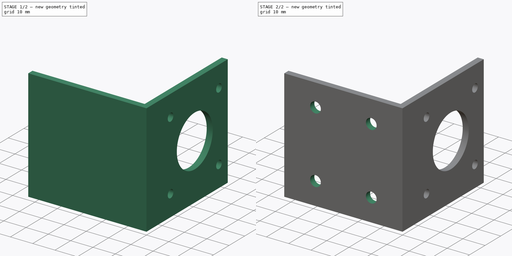
[diagram: build sequence overview — one tinted view per stage of 2, left to right]
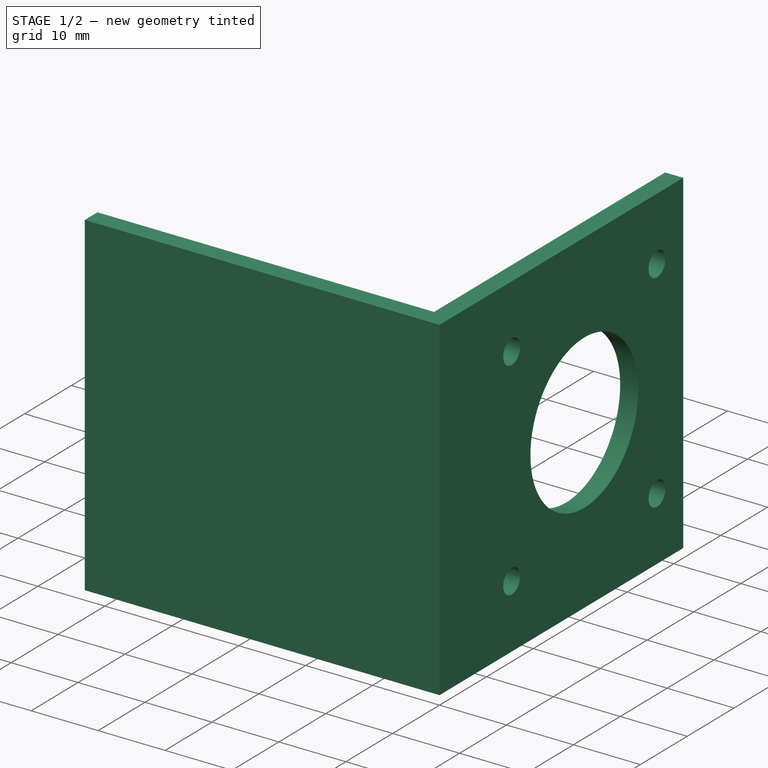
[diagram: stage 1 of 2 — iso view after this stage's code; geometry added in this stage tinted green]
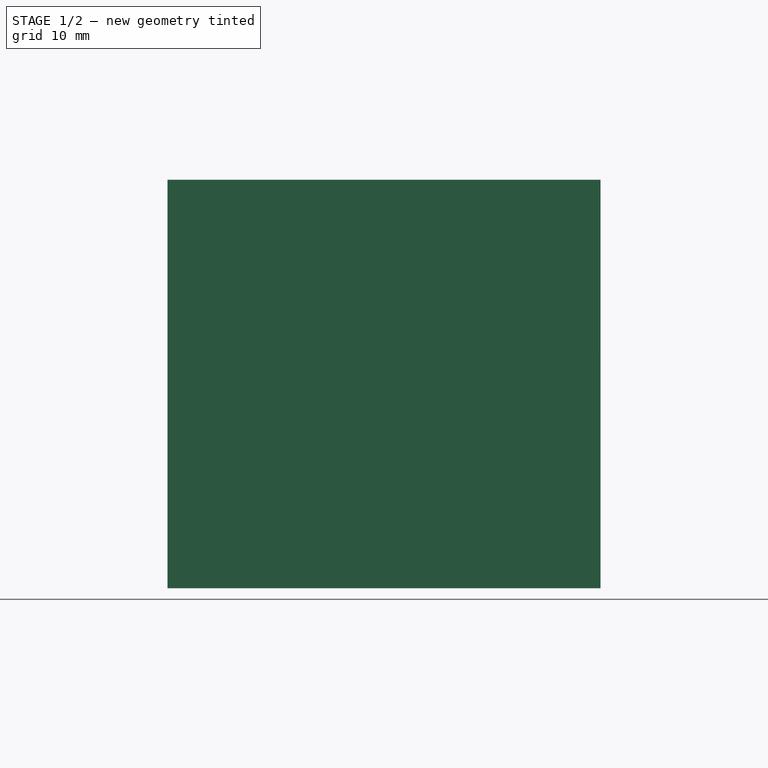
[diagram: stage 1 of 2 — front view after this stage's code; geometry added in this stage tinted green]
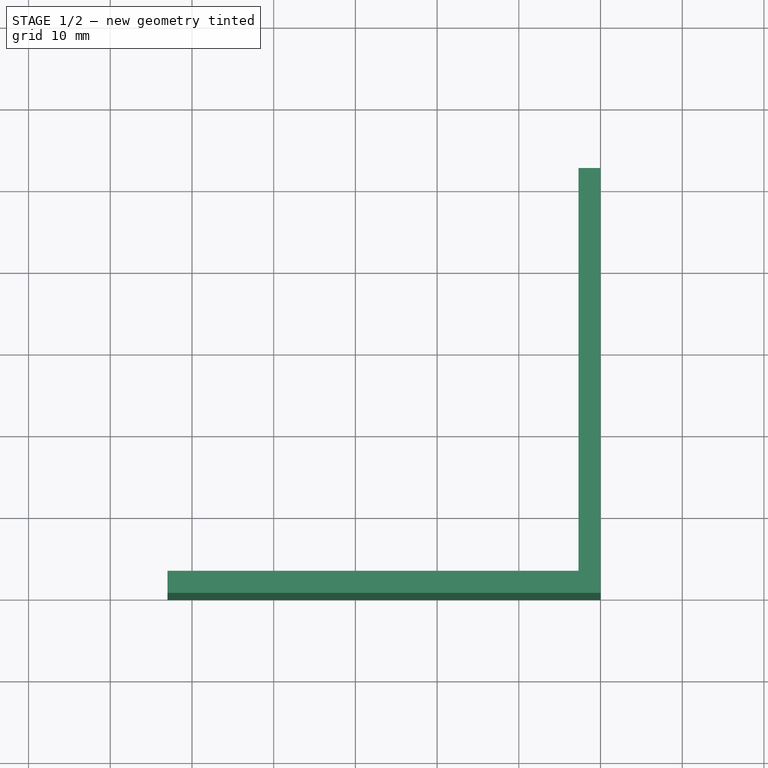
[diagram: stage 1 of 2 — top view after this stage's code; geometry added in this stage tinted green]
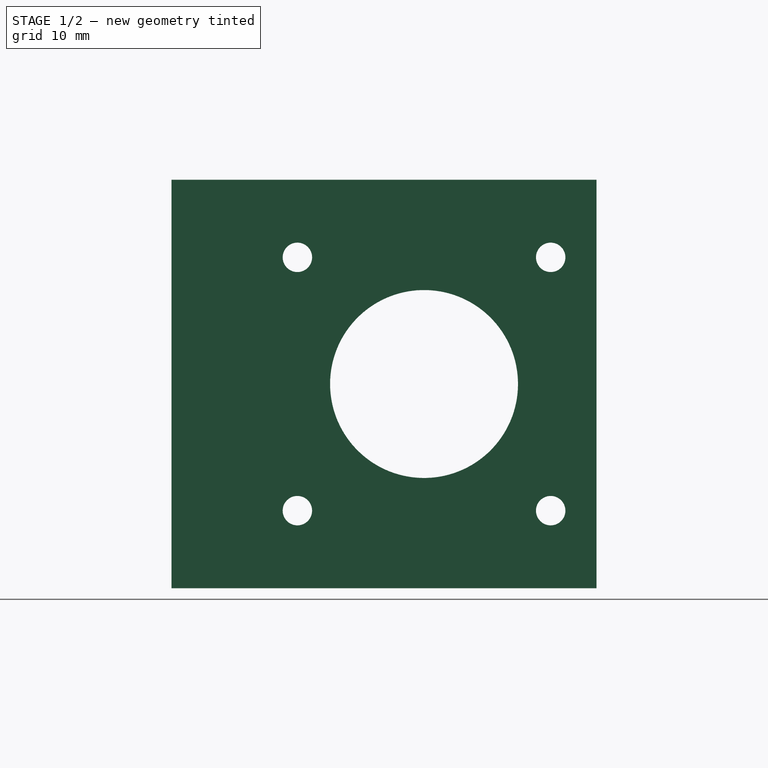
[diagram: stage 1 of 2 — right view after this stage's code; geometry added in this stage tinted green]
FCSTD DOCUMENT  (FreeCAD 0.16R6706 (Git))
Label: Suporte Lateral Nema 17
License: All rights reserved
LicenseURL: http://en.wikipedia.org/wiki/All_rights_reserved
objects: Sketcher::SketchObject×3, PartDesign::Pocket×2, PartDesign::Pad×1
note: 9 computed .brp shape members not serialized (recipe doc carries the construction recipe); baked Part::Feature solids carry a one-line shape summary decoded from their .brp

FEATURE [Sketcher::SketchObject] Sketch
  sketch-geometry (6):
    g0: LineSegment StartX=-2.7 StartY=2.7 StartZ=0 EndX=-53 EndY=2.7 EndZ=0
    g1: LineSegment StartX=-53 StartY=2.7 StartZ=0 EndX=-53 EndY=0 EndZ=0
    g2: LineSegment StartX=-53 StartY=0 StartZ=0 EndX=0 EndY=0 EndZ=0
    g3: LineSegment StartX=0 StartY=0 StartZ=0 EndX=0 EndY=52 EndZ=0
    g4: LineSegment StartX=0 StartY=52 StartZ=0 EndX=-2.7 EndY=52 EndZ=0
    g5: LineSegment StartX=-2.7 StartY=52 StartZ=0 EndX=-2.7 EndY=2.7 EndZ=0
  constraints (17):
    c: Coincident(g0,g1)
    c: Coincident(g1,g2)
    c: Coincident(g2,g3)
    c: Coincident(g3,g4)
    c: Coincident(g4,g5)
    c: Coincident(g0,g5)
    c: Horizontal(g0)
    c: Horizontal(g2)
    c: Horizontal(g4)
    c: Vertical(g1)
    c: Vertical(g5)
    c: Vertical(g3)
    c: DistanceY(g1,g1) = 2.7
    c: DistanceX(g4,g4) = 2.7
    c: DistanceX(g2,g2) = 53
    c: DistanceY(g3,g3) = 52
    c: Coincident(g2,g-1)
FEATURE [PartDesign::Pad] Pad
  Length = 50
  Length2 = 100
  Sketch = -> Sketch
  Type = 0
FEATURE [Sketcher::SketchObject] Sketch001
  ExternalGeometry = -> [Pad]
  Placement = pos=(-2.7,0,0) rot=(0.57735,-0.57735,-0.57735;2.0944rad)
  Support = -> Pad [Face6]
  sketch-geometry (10):
    g0: LineSegment [constr] StartX=-46.4 StartY=40.5 StartZ=0 EndX=-15.4 EndY=40.5 EndZ=0
    g1: LineSegment [constr] StartX=-15.4 StartY=40.5 StartZ=0 EndX=-15.4 EndY=9.5 EndZ=0
    g2: LineSegment [constr] StartX=-15.4 StartY=9.5 StartZ=0 EndX=-46.4 EndY=9.5 EndZ=0
    g3: LineSegment [constr] StartX=-46.4 StartY=9.5 StartZ=0 EndX=-46.4 EndY=40.5 EndZ=0
    g4: Circle CenterX=-30.9 CenterY=25 CenterZ=0 NormalX=0 NormalY=0 NormalZ=1 Radius=11.5
    g5: LineSegment [constr] StartX=-60.8024 StartY=25 StartZ=0 EndX=-33.6894 EndY=25 EndZ=0
    g6: Circle CenterX=-46.4 CenterY=40.5 CenterZ=0 NormalX=0 NormalY=0 NormalZ=1 Radius=1.8
    g7: Circle CenterX=-15.4 CenterY=40.5 CenterZ=0 NormalX=0 NormalY=0 NormalZ=1 Radius=1.8
    g8: Circle CenterX=-15.4 CenterY=9.5 CenterZ=0 NormalX=0 NormalY=0 NormalZ=1 Radius=1.8
    g9: Circle CenterX=-46.4 CenterY=9.5 CenterZ=0 NormalX=0 NormalY=0 NormalZ=1 Radius=1.8
  constraints (24):
    c: Coincident(g0,g1)
    c: Coincident(g1,g2)
    c: Coincident(g2,g3)
    c: Coincident(g3,g0)
    c: Horizontal(g0)
    c: Horizontal(g2)
    c: Vertical(g1)
    c: Vertical(g3)
    c: DistanceY(g3,g3) = 31
    c: Equal(g3,g0)
    c: Radius(g4) = 11.5
    c: Symmetric(g2,g0,g4)
    c: DistanceX(g-3,g2) = 5.6
    c: Horizontal(g5)
    c: Symmetric(g-4,g-3,g5)
    c: PointOnObject(g4,g5)
    c: Radius(g6) = 1.8
    c: Equal(g6,g7) = 1.8
    c: Equal(g6,g8) = 1.8
    c: Equal(g6,g9) = 1.8
    c: Coincident(g2,g9)
    c: Coincident(g1,g8)
    c: Coincident(g0,g7)
    c: Coincident(g6,g0)
FEATURE [PartDesign::Pocket] Pocket
  Length = 5
  Sketch = -> Sketch001
  Type = 2
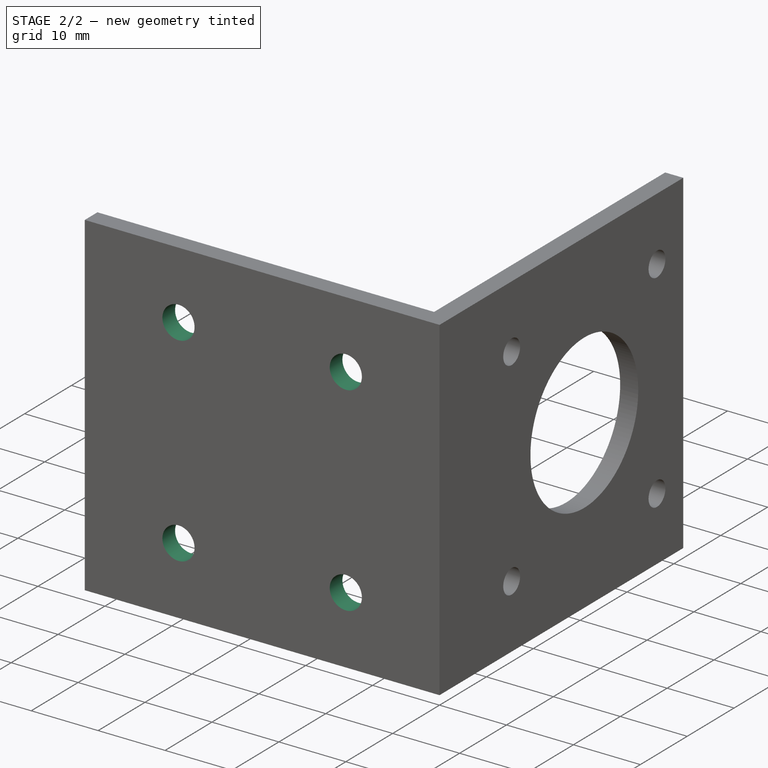
[diagram: stage 2 of 2 — iso view after this stage's code; geometry added in this stage tinted green]
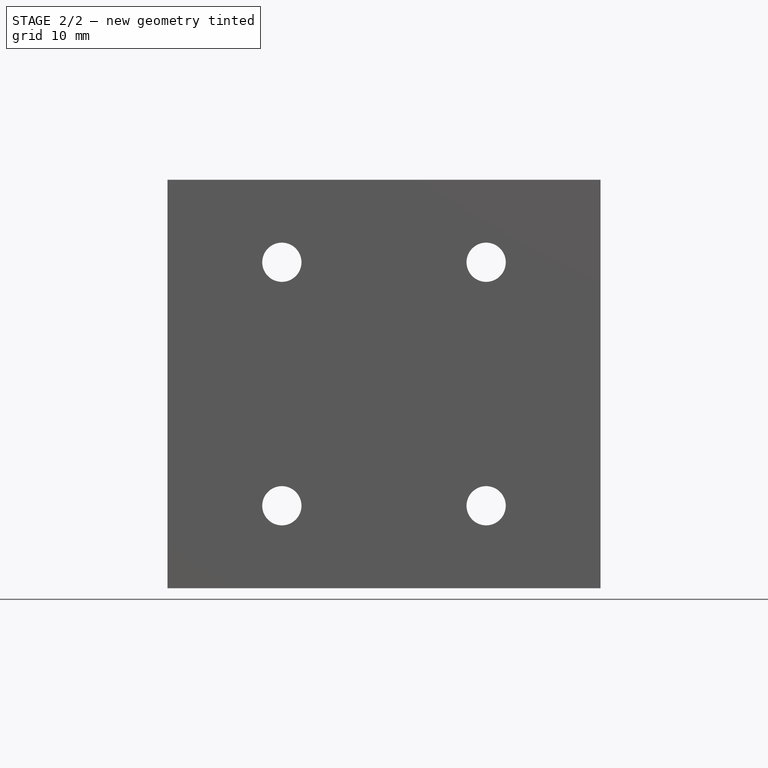
[diagram: stage 2 of 2 — front view after this stage's code; geometry added in this stage tinted green]
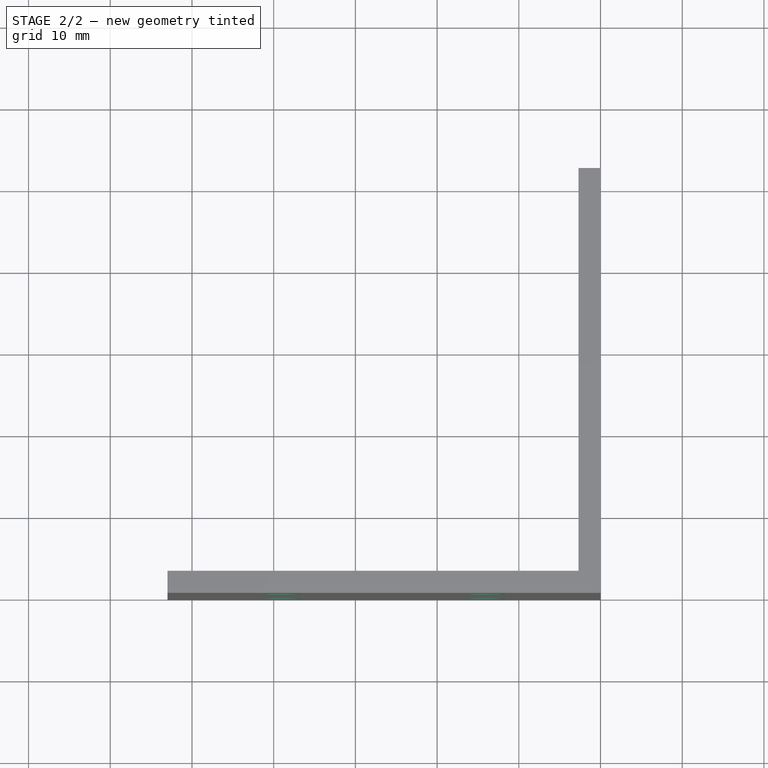
[diagram: stage 2 of 2 — top view after this stage's code; geometry added in this stage tinted green]
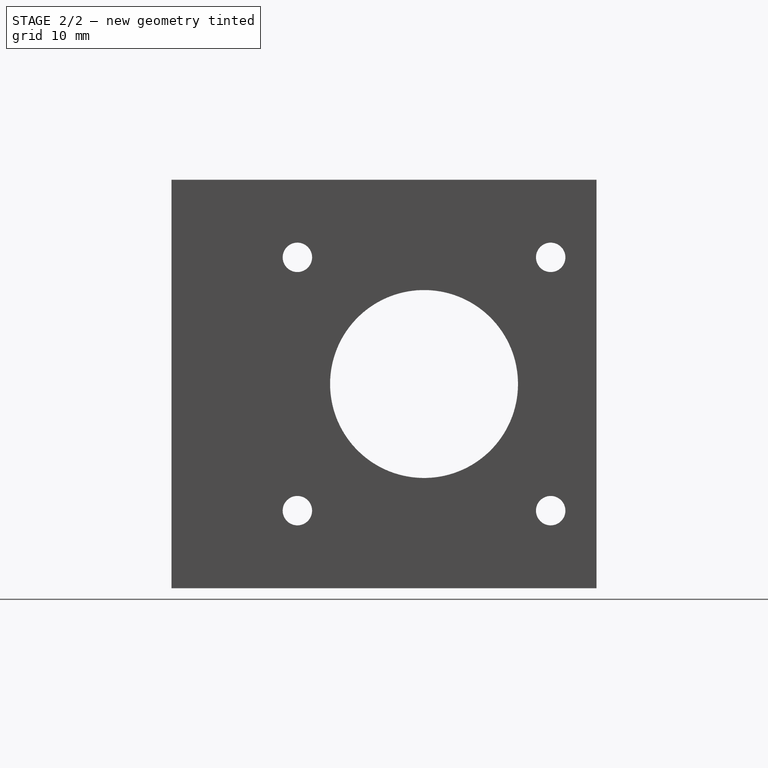
[diagram: stage 2 of 2 — right view after this stage's code; geometry added in this stage tinted green]
FEATURE [Sketcher::SketchObject] Sketch002
  ExternalGeometry = -> [Pocket]
  Placement = pos=(0,2.7,0) rot=(0,0.707107,0.707107;3.14159rad)
  Support = -> Pocket [Face1]
  sketch-geometry (8):
    g0: LineSegment [constr] StartX=14 StartY=39.9 StartZ=0 EndX=39 EndY=39.9 EndZ=0
    g1: LineSegment [constr] StartX=39 StartY=39.9 StartZ=0 EndX=39 EndY=10.1 EndZ=0
    g2: LineSegment [constr] StartX=39 StartY=10.1 StartZ=0 EndX=14 EndY=10.1 EndZ=0
    g3: LineSegment [constr] StartX=14 StartY=10.1 StartZ=0 EndX=14 EndY=39.9 EndZ=0
    g4: Circle CenterX=14 CenterY=39.9 CenterZ=0 NormalX=0 NormalY=0 NormalZ=1 Radius=2.4
    g5: Circle CenterX=39 CenterY=39.9 CenterZ=0 NormalX=0 NormalY=0 NormalZ=1 Radius=2.4
    g6: Circle CenterX=39 CenterY=10.1 CenterZ=0 NormalX=0 NormalY=0 NormalZ=1 Radius=2.4
    g7: Circle CenterX=14 CenterY=10.1 CenterZ=0 NormalX=0 NormalY=0 NormalZ=1 Radius=2.4
  constraints (20):
    c: Coincident(g0,g1)
    c: Coincident(g1,g2)
    c: Coincident(g2,g3)
    c: Coincident(g3,g0)
    c: Horizontal(g0)
    c: Horizontal(g2)
    c: Vertical(g1)
    c: Vertical(g3)
    c: DistanceY(g1,g1) = 29.8
    c: DistanceY(g0,g-3) = 10.1
    c: DistanceX(g0,g0) = 25
    c: DistanceX(g-3,g0) = 11.3
    c: Radius(g4) = 2.4
    c: Equal(g4,g5) = 2.4
    c: Equal(g4,g6) = 2.4
    c: Equal(g4,g7) = 2.4
    c: Coincident(g0,g4)
    c: Coincident(g0,g5)
    c: Coincident(g2,g7)
    c: Coincident(g1,g6)
FEATURE [PartDesign::Pocket] Pocket001
  Length = 5
  Sketch = -> Sketch002
  Type = 0
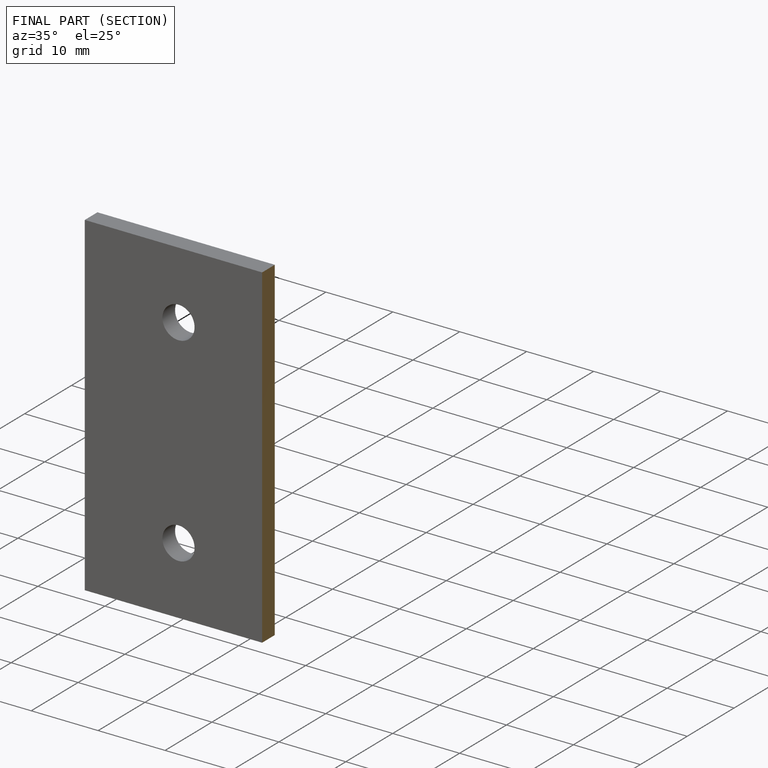
[diagram: finished part — half-section view (interior)]
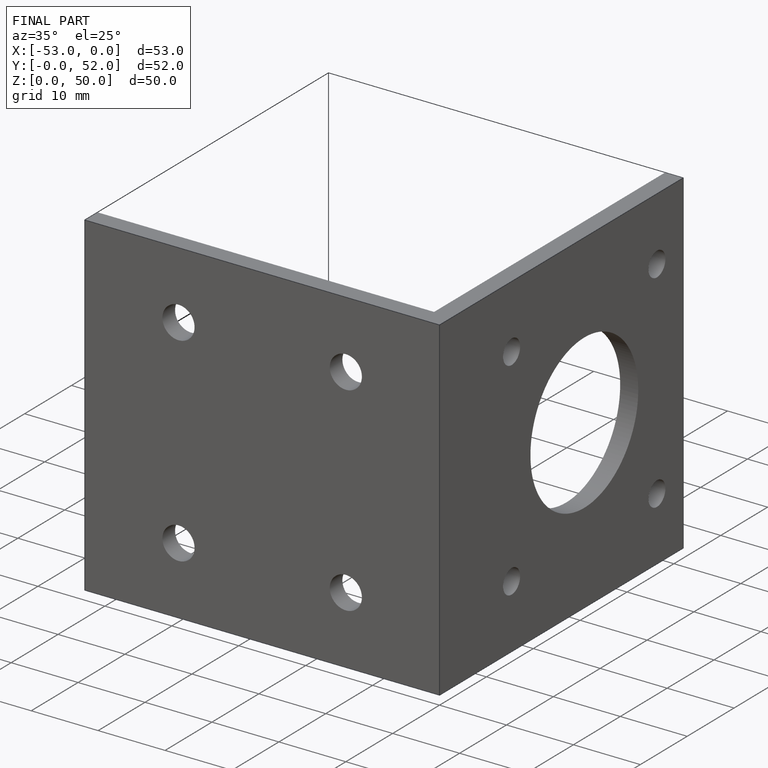
[diagram: finished part — iso view with bounding-box wireframe]
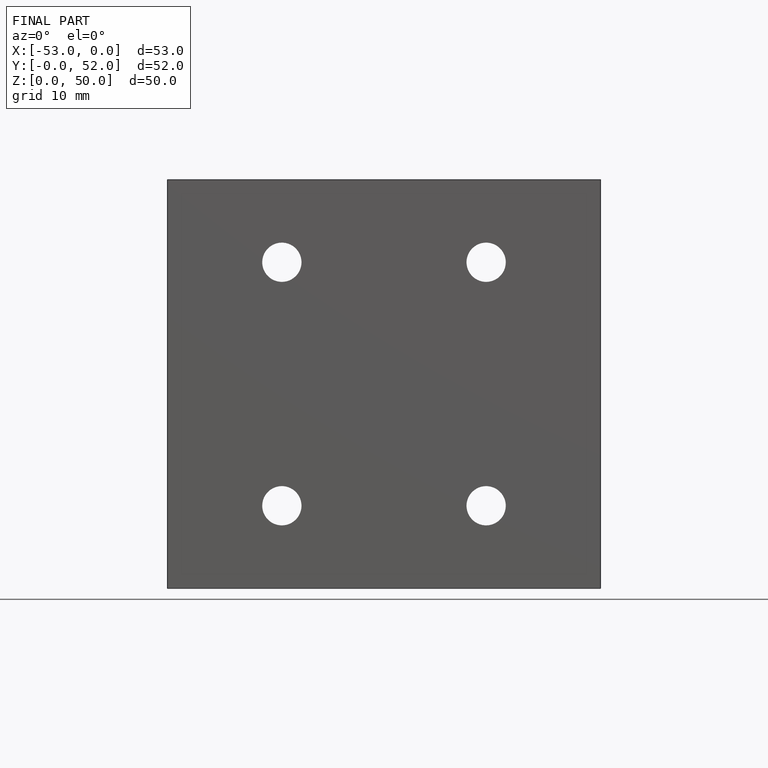
[diagram: finished part — front view with bounding-box wireframe]
